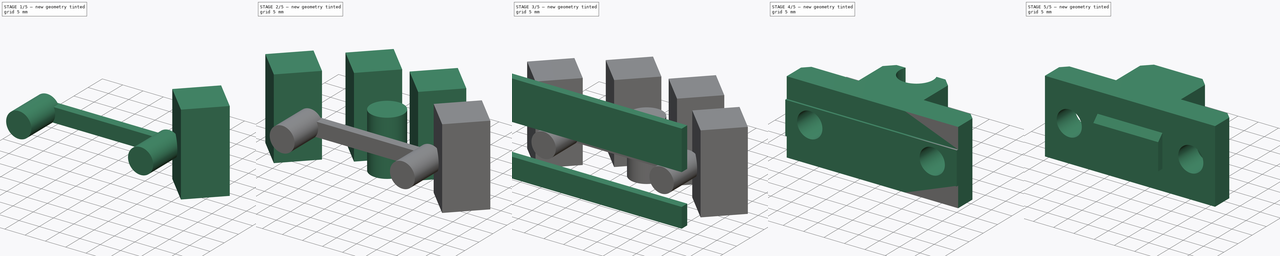
[diagram: build sequence overview — one tinted view per stage of 5, left to right]
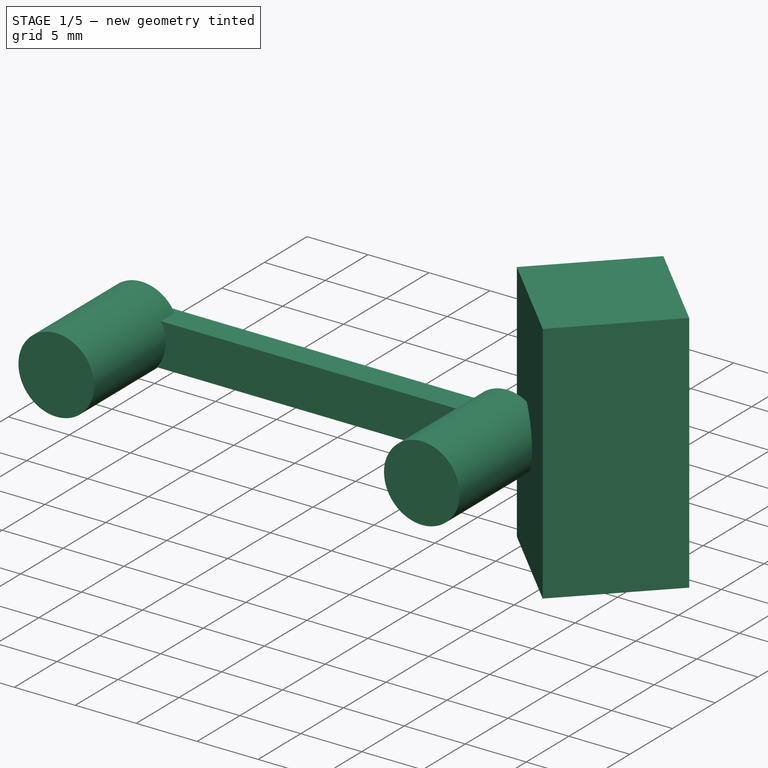
[diagram: stage 1 of 5 — iso view after this stage's code; geometry added in this stage tinted green]
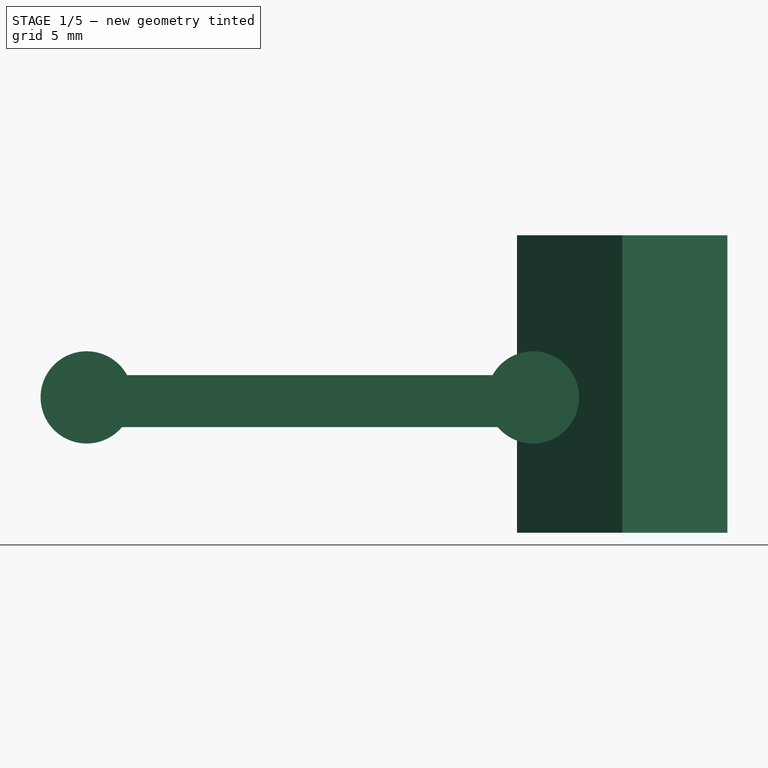
[diagram: stage 1 of 5 — front view after this stage's code; geometry added in this stage tinted green]
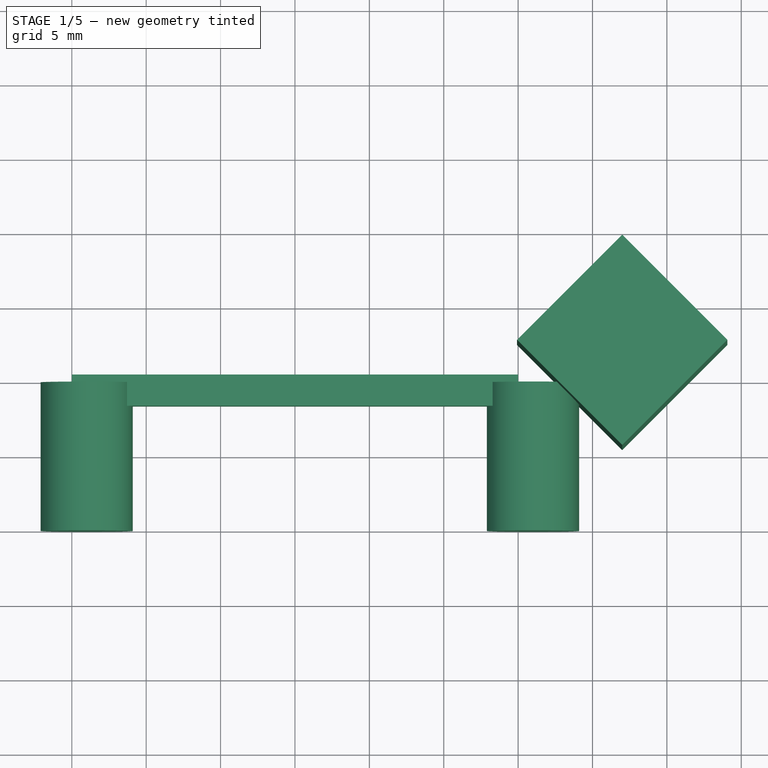
[diagram: stage 1 of 5 — top view after this stage's code; geometry added in this stage tinted green]
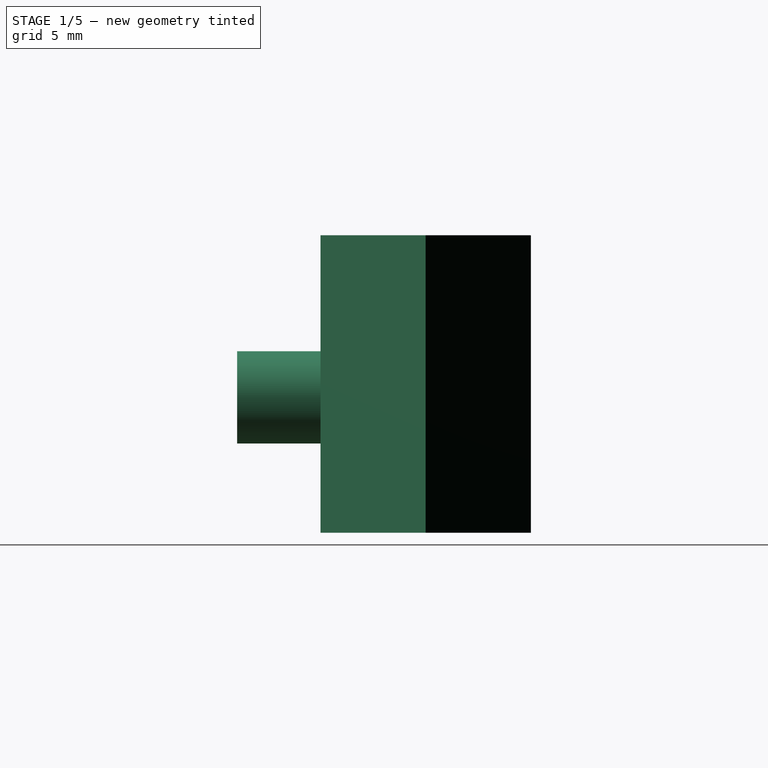
[diagram: stage 1 of 5 — right view after this stage's code; geometry added in this stage tinted green]
FCSTD DOCUMENT  (FreeCAD 0.19R)
Label: y-rod-holder
License: All rights reserved
LicenseURL: http://en.wikipedia.org/wiki/All_rights_reserved
objects: Part::Box×9, Part::Cylinder×3, Sketcher::SketchObject×2, Part::Fuse×1, Part::MultiFuse×1, Part::Cut×1, PartDesign::FeatureBase×1, PartDesign::Pocket×1, PartDesign::Pad×1, PartDesign::Chamfer×1, PartDesign::Body×1
note: 25 computed .brp shape members not serialized (recipe doc carries the construction recipe); baked Part::Feature solids carry a one-line shape summary decoded from their .brp

FEATURE [Part::Box] cube007
  AttacherType = Attacher::AttachEngine3D
  Height = 20
  Length = 10
  Placement = pos=(42,5.5,-0.1) rot=(0,0,1;0.785398rad)
  Width = 10
FEATURE [Part::Cylinder] cylinder001
  Angle = 360
  AttacherType = Attacher::AttachEngine3D
  Height = 10
  Placement = pos=(6,-0.1,9) rot=(-1,0,0;1.5708rad)
  Radius = 3.1
FEATURE [Part::Cylinder] cylinder002
  Angle = 360
  AttacherType = Attacher::AttachEngine3D
  Height = 10
  Placement = pos=(36,-0.1,9) rot=(-1,0,0;1.5708rad)
  Radius = 3.1
FEATURE [Part::Box] cube008
  AttacherType = Attacher::AttachEngine3D
  Height = 3.5
  Length = 30
  Placement = pos=(5,8.3,7) rot=(0,0,1;0rad)
  Width = 2.1
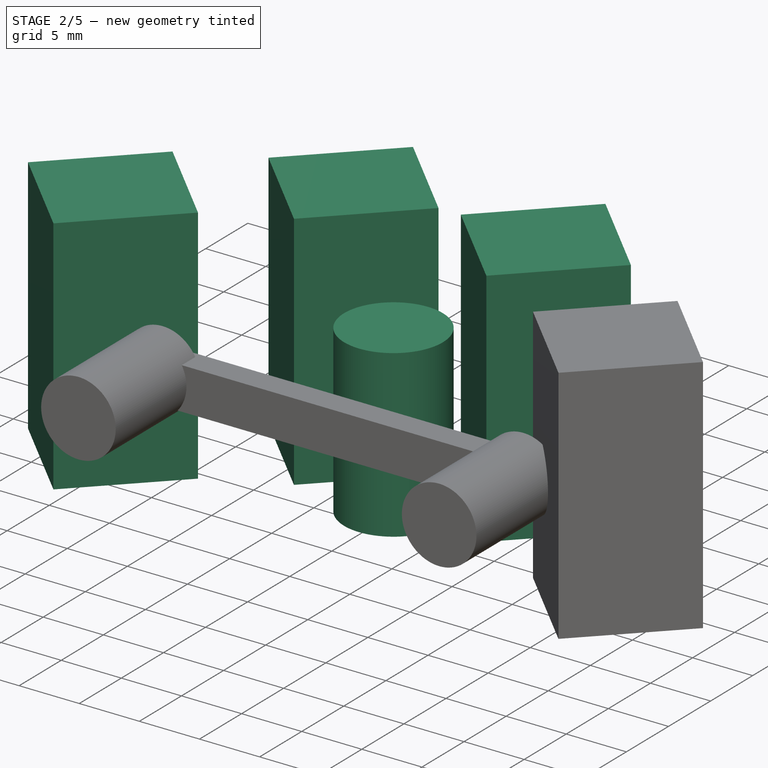
[diagram: stage 2 of 5 — iso view after this stage's code; geometry added in this stage tinted green]
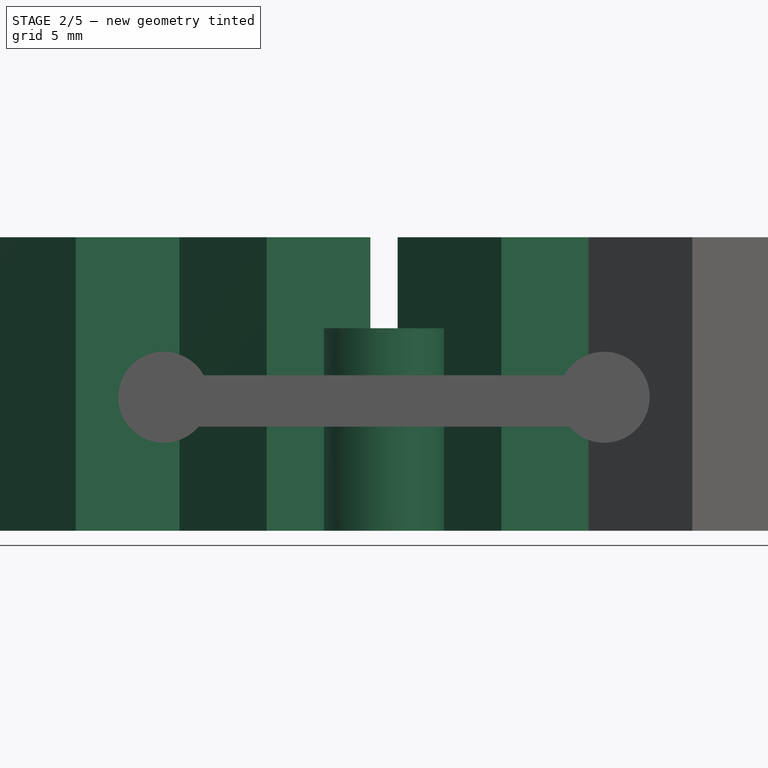
[diagram: stage 2 of 5 — front view after this stage's code; geometry added in this stage tinted green]
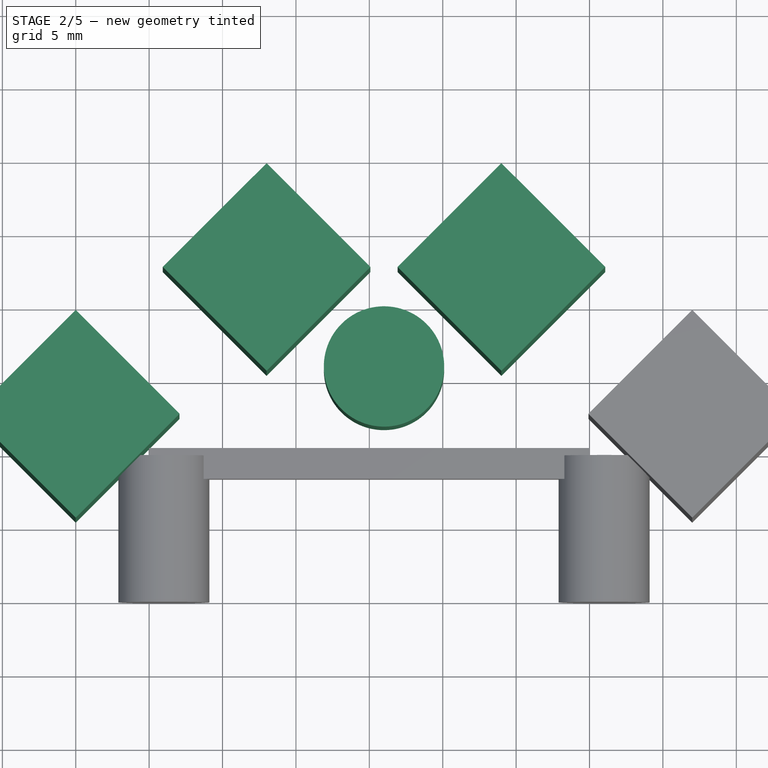
[diagram: stage 2 of 5 — top view after this stage's code; geometry added in this stage tinted green]
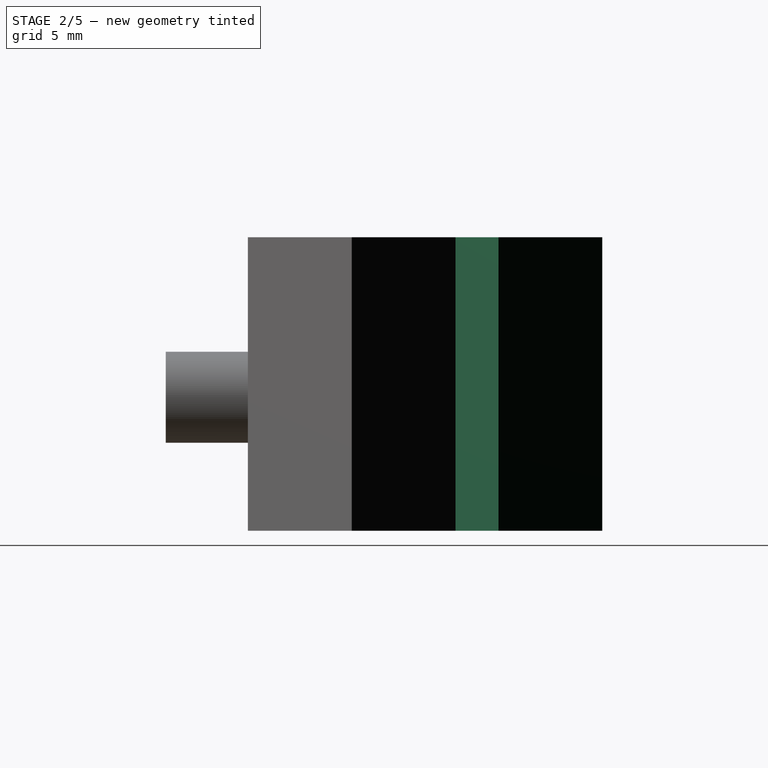
[diagram: stage 2 of 5 — right view after this stage's code; geometry added in this stage tinted green]
FEATURE [Part::Cylinder] cylinder
  Angle = 360
  AttacherType = Attacher::AttachEngine3D
  Height = 13.8
  Placement = pos=(21,15.9,-0.1) rot=(0,0,1;0rad)
  Radius = 4.1
FEATURE [Part::Box] cube004
  AttacherType = Attacher::AttachEngine3D
  Height = 20
  Length = 10
  Placement = pos=(13,15.5,-0.1) rot=(0,0,1;0.785398rad)
  Width = 10
FEATURE [Part::Box] cube005
  AttacherType = Attacher::AttachEngine3D
  Height = 20
  Length = 10
  Placement = pos=(29,15.5,-0.1) rot=(0,0,1;0.785398rad)
  Width = 10
FEATURE [Part::Box] cube006
  AttacherType = Attacher::AttachEngine3D
  Height = 20
  Length = 10
  Placement = pos=(0,5.5,-0.1) rot=(0,0,1;0.785398rad)
  Width = 10
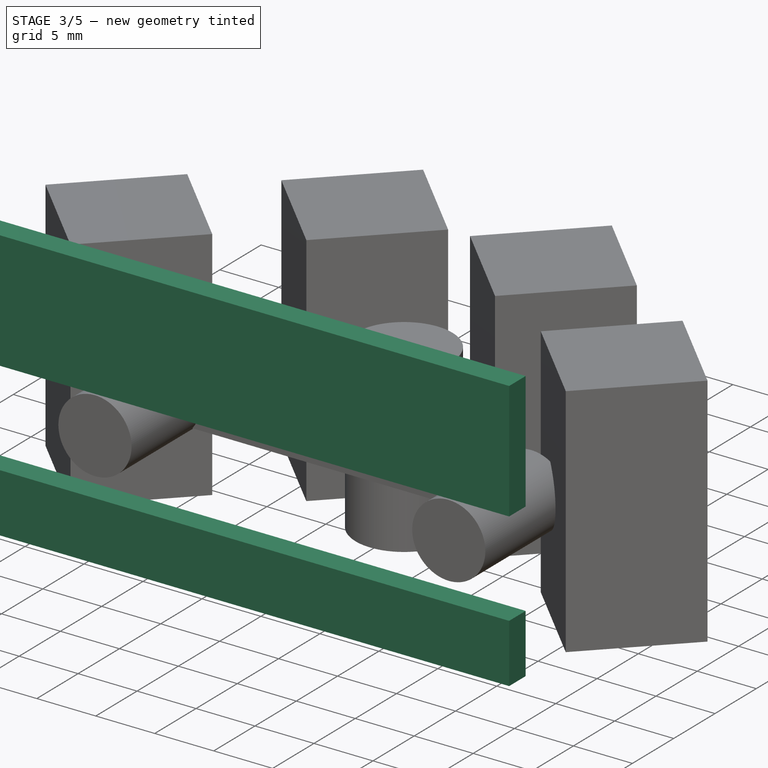
[diagram: stage 3 of 5 — iso view after this stage's code; geometry added in this stage tinted green]
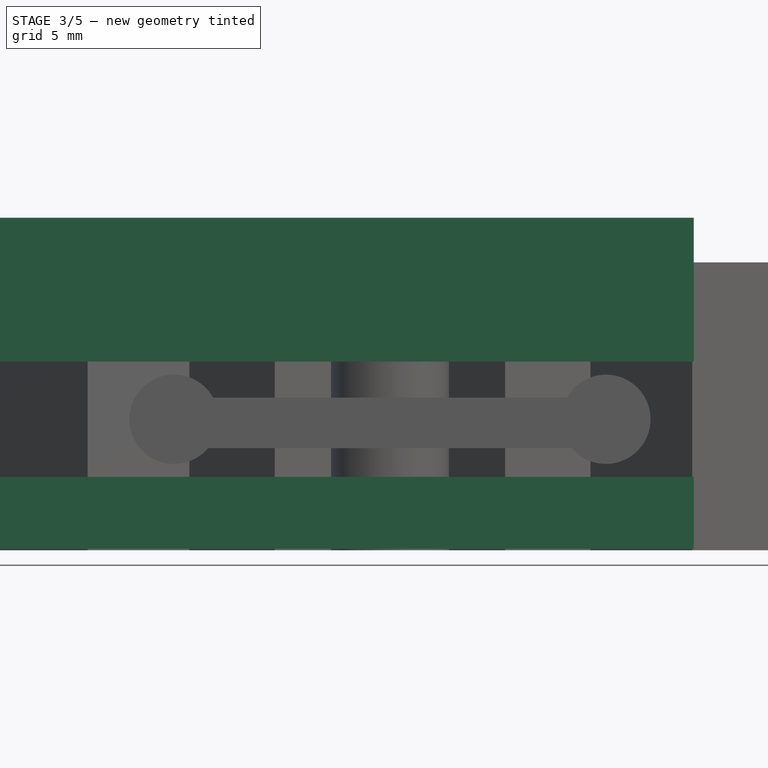
[diagram: stage 3 of 5 — front view after this stage's code; geometry added in this stage tinted green]
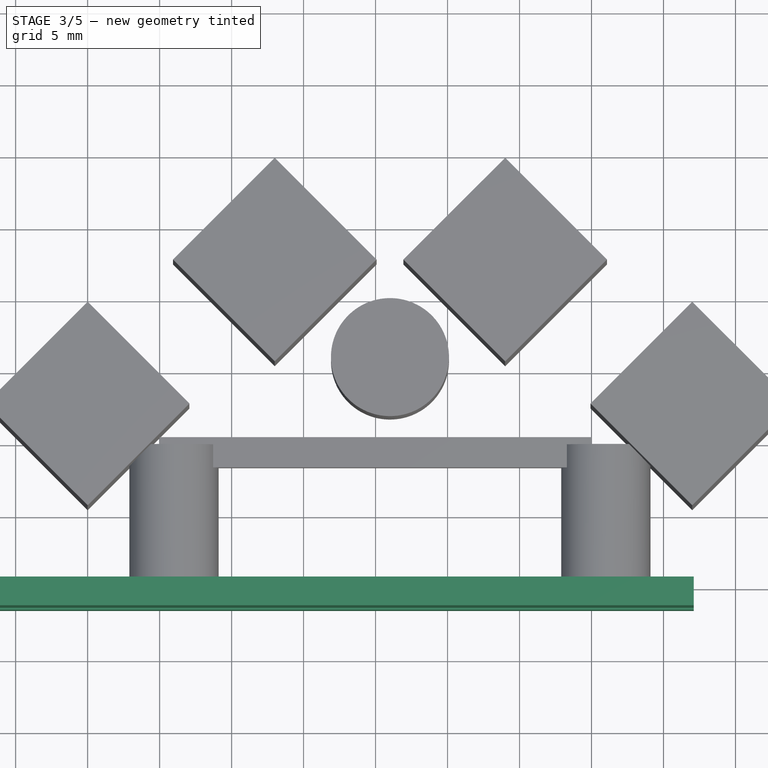
[diagram: stage 3 of 5 — top view after this stage's code; geometry added in this stage tinted green]
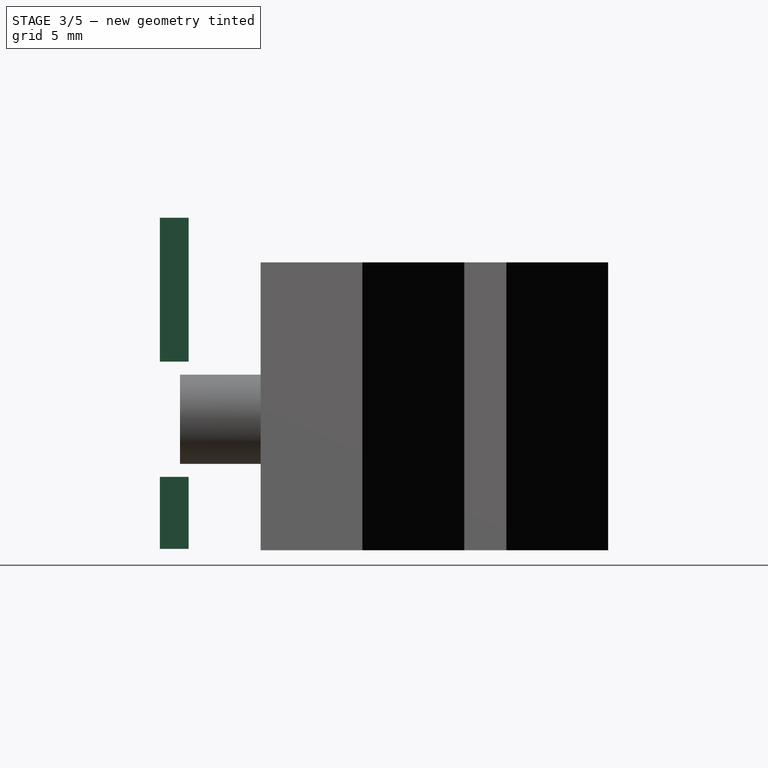
[diagram: stage 3 of 5 — right view after this stage's code; geometry added in this stage tinted green]
FEATURE [Part::Box] cube002
  AttacherType = Attacher::AttachEngine3D
  Height = 10
  Length = 50
  Placement = pos=(42.1,0.5,13) rot=(0,0,1;3.14159rad)
  Width = 2
FEATURE [Part::Box] cube003
  AttacherType = Attacher::AttachEngine3D
  Height = 5
  Length = 50
  Placement = pos=(42.1,0.5,0) rot=(0,0,1;3.14159rad)
  Width = 2
FEATURE [Part::MultiFuse] Group001
  Shapes = -> [cube002,cube003,cylinder,cube004,cube005,cube006,cube007,cylinder001,cylinder002,cube008]
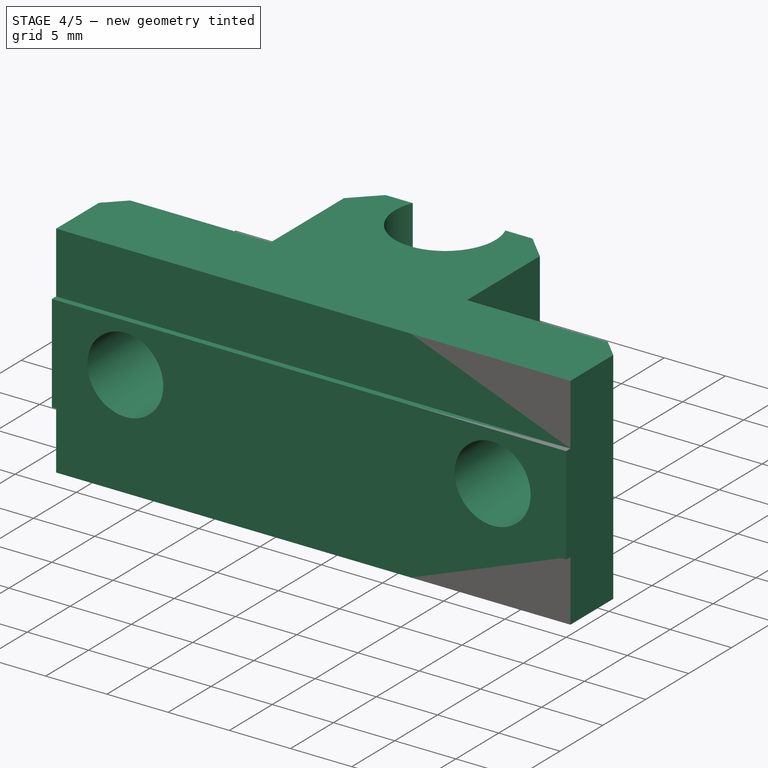
[diagram: stage 4 of 5 — iso view after this stage's code; geometry added in this stage tinted green]
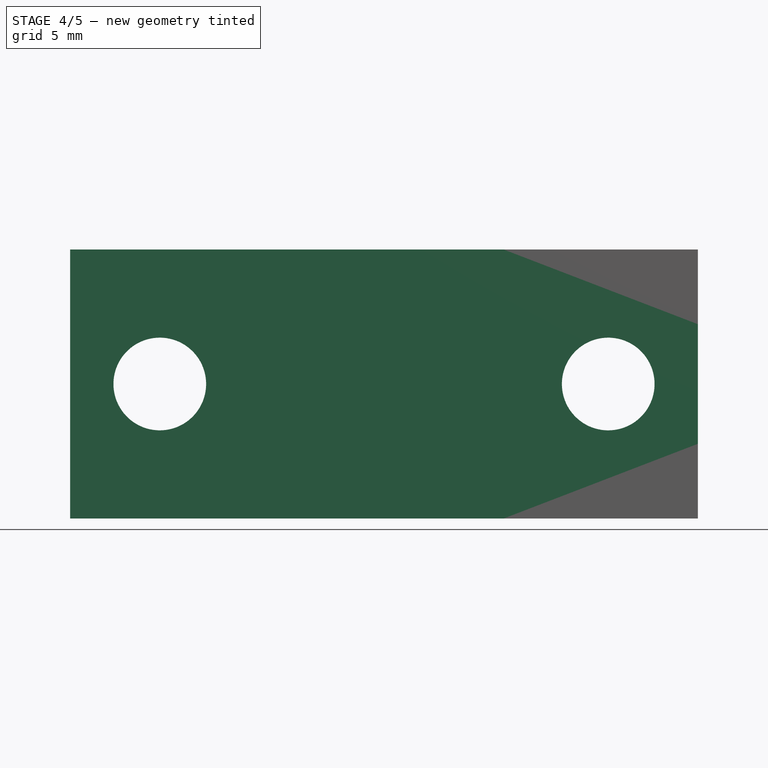
[diagram: stage 4 of 5 — front view after this stage's code; geometry added in this stage tinted green]
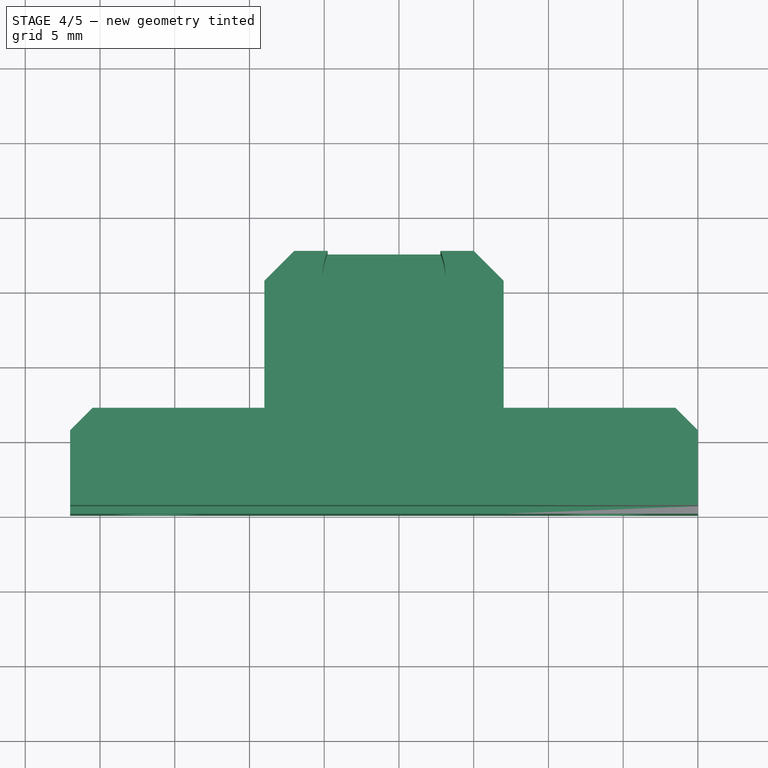
[diagram: stage 4 of 5 — top view after this stage's code; geometry added in this stage tinted green]
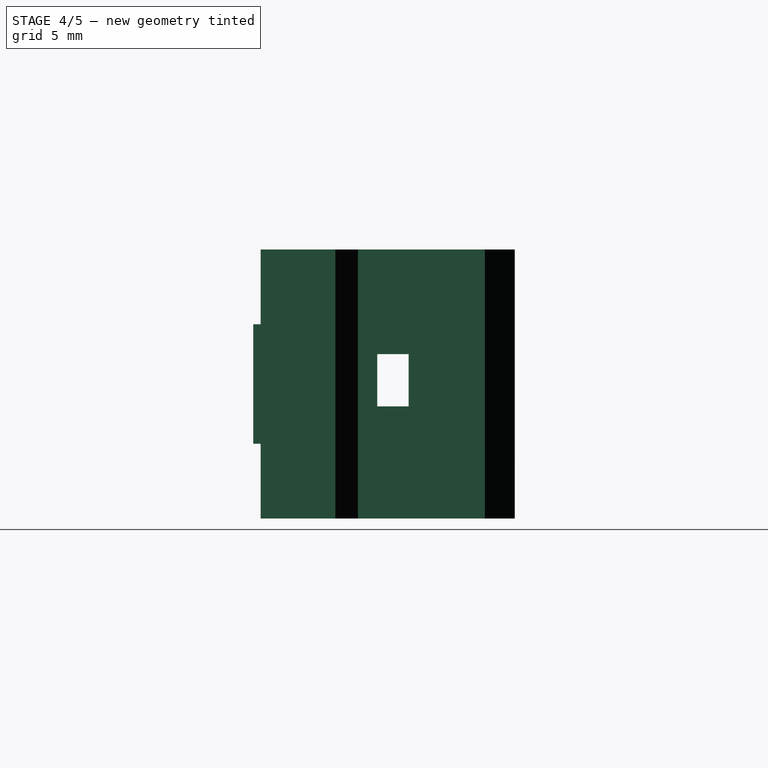
[diagram: stage 4 of 5 — right view after this stage's code; geometry added in this stage tinted green]
FEATURE [Part::Box] cube
  AttacherType = Attacher::AttachEngine3D
  Height = 18
  Length = 42
  Width = 7
FEATURE [Part::Box] cube001
  AttacherType = Attacher::AttachEngine3D
  Height = 18
  Length = 16
  Placement = pos=(13,0,0) rot=(0,0,1;0rad)
  Width = 17.5
FEATURE [Part::Fuse] Group
  Base = -> cube
  Tool = -> cube001
FEATURE [Part::Cut] difference
  Base = -> Group
  Placement = pos=(0,0,18) rot=(0,1,0;3.14159rad)
  Tool = -> Group001
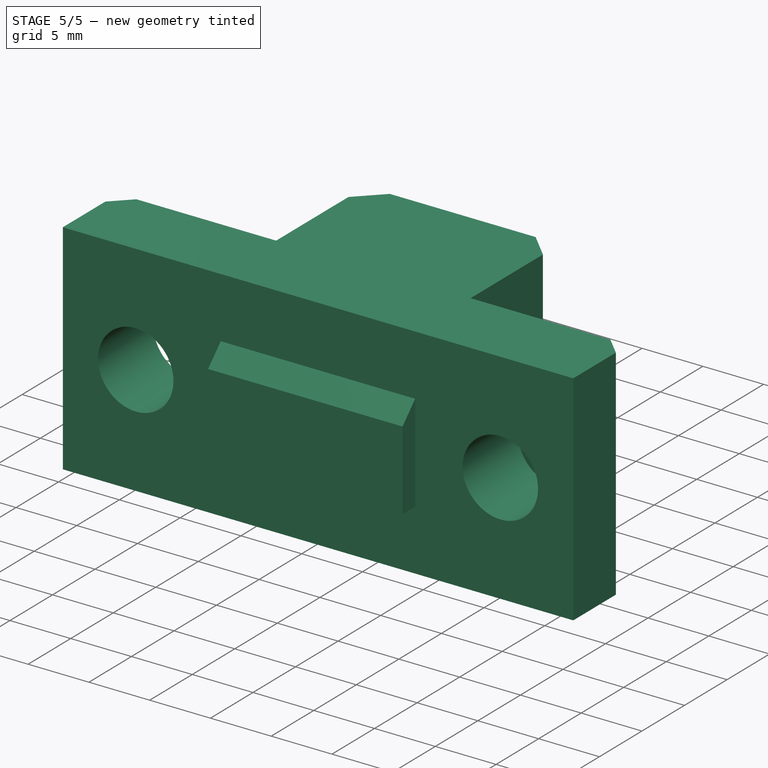
[diagram: stage 5 of 5 — iso view after this stage's code; geometry added in this stage tinted green]
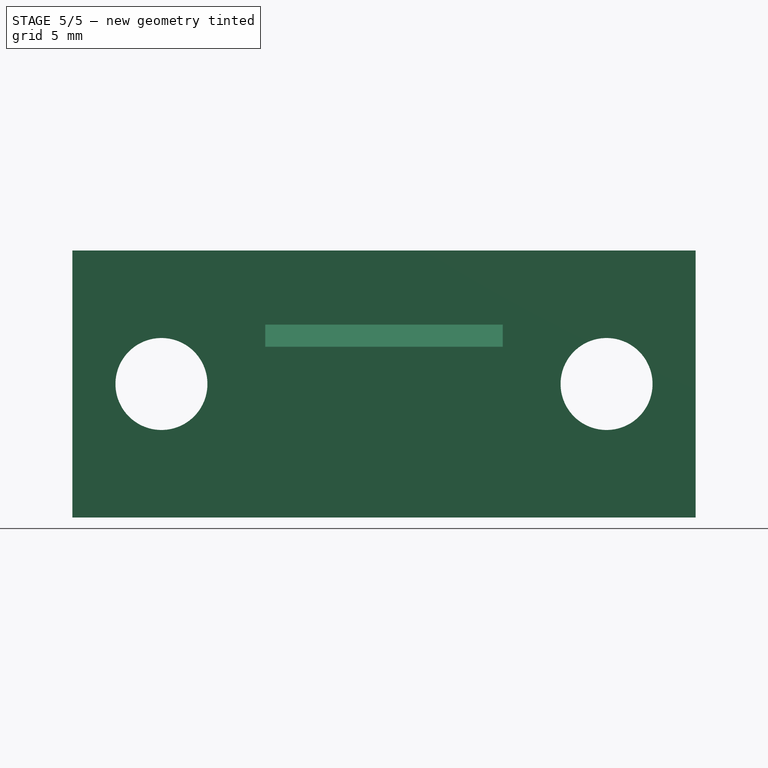
[diagram: stage 5 of 5 — front view after this stage's code; geometry added in this stage tinted green]
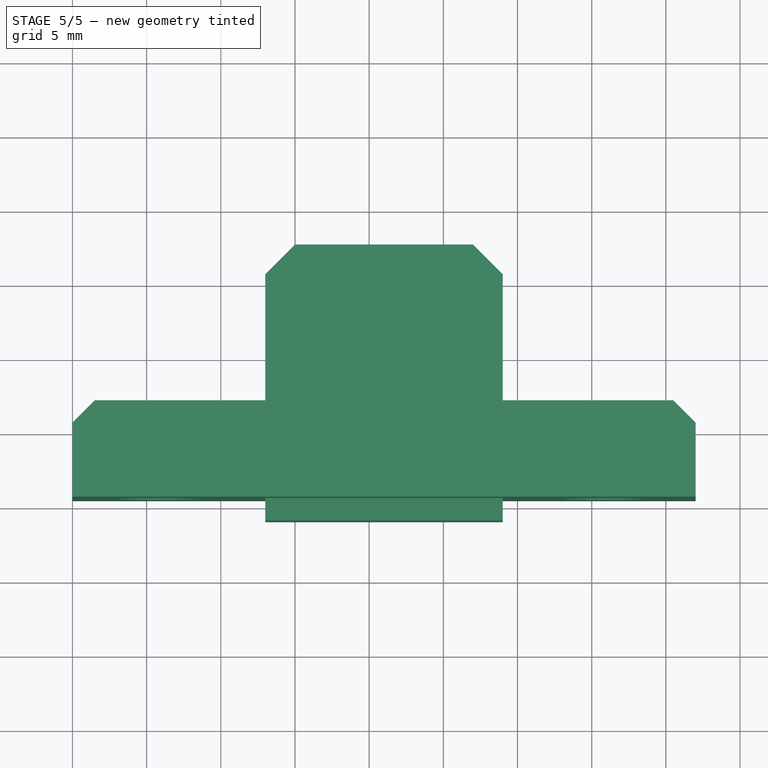
[diagram: stage 5 of 5 — top view after this stage's code; geometry added in this stage tinted green]
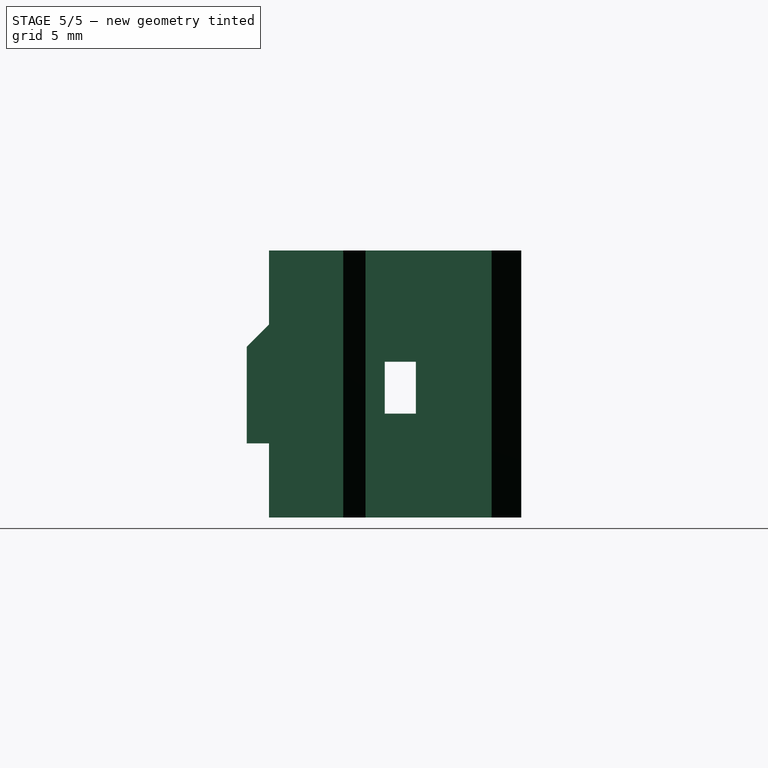
[diagram: stage 5 of 5 — right view after this stage's code; geometry added in this stage tinted green]
FEATURE [PartDesign::FeatureBase] BaseFeature
  BaseFeature = -> difference
FEATURE [Sketcher::SketchObject] Sketch
  ExternalGeometry = -> [BaseFeature]
  MapMode = 5
  Placement = pos=(0,0,0) rot=(1,0,0;1.5708rad)
  Support = -> [BaseFeature]
  sketch-geometry (8):
    g0: LineSegment StartX=0 StartY=13 StartZ=0 EndX=13 EndY=13 EndZ=0
    g1: LineSegment StartX=13 StartY=13 StartZ=0 EndX=13 EndY=5 EndZ=0
    g2: LineSegment StartX=13 StartY=5 StartZ=0 EndX=0 EndY=5 EndZ=0
    g3: LineSegment StartX=0 StartY=5 StartZ=0 EndX=0 EndY=13 EndZ=0
    g4: LineSegment StartX=29 StartY=13 StartZ=0 EndX=42 EndY=13 EndZ=0
    g5: LineSegment StartX=42 StartY=13 StartZ=0 EndX=42 EndY=5 EndZ=0
    g6: LineSegment StartX=42 StartY=5 StartZ=0 EndX=29 EndY=5 EndZ=0
    g7: LineSegment StartX=29 StartY=5 StartZ=0 EndX=29 EndY=13 EndZ=0
  constraints (20):
    c: Coincident(g0,g1)
    c: Coincident(g1,g2)
    c: Coincident(g2,g3)
    c: Coincident(g3,g0)
    c: Horizontal(g0)
    c: Horizontal(g2)
    c: Vertical(g1)
    c: Vertical(g3)
    c: Coincident(g0,g-3)
    c: Coincident(g1,g-6)
    c: Coincident(g4,g5)
    c: Coincident(g5,g6)
    c: Coincident(g6,g7)
    c: Coincident(g7,g4)
    c: Horizontal(g4)
    c: Horizontal(g6)
    c: Vertical(g5)
    c: Vertical(g7)
    c: Coincident(g4,g-4)
    c: Coincident(g5,g-5)
FEATURE [PartDesign::Pocket] Pocket
  BaseFeature = -> BaseFeature
  Length = 0.5
  Length2 = 100
  Profile = -> Sketch
  Type = 0
FEATURE [Sketcher::SketchObject] Sketch001
  ExternalGeometry = -> [Pocket]
  MapMode = 5
  Placement = pos=(0,0,0) rot=(1,0,0;1.5708rad)
  Support = -> [Pocket]
  sketch-geometry (4):
    g0: LineSegment StartX=13 StartY=13 StartZ=0 EndX=29 EndY=13 EndZ=0
    g1: LineSegment StartX=29 StartY=13 StartZ=0 EndX=29 EndY=5 EndZ=0
    g2: LineSegment StartX=29 StartY=5 StartZ=0 EndX=13 EndY=5 EndZ=0
    g3: LineSegment StartX=13 StartY=5 StartZ=0 EndX=13 EndY=13 EndZ=0
  constraints (10):
    c: Coincident(g0,g1)
    c: Coincident(g1,g2)
    c: Coincident(g2,g3)
    c: Coincident(g3,g0)
    c: Horizontal(g0)
    c: Horizontal(g2)
    c: Vertical(g1)
    c: Vertical(g3)
    c: Coincident(g0,g-3)
    c: Coincident(g1,g-4)
FEATURE [PartDesign::Pad] Pad
  BaseFeature = -> Pocket
  Length = 1
  Length2 = 100
  Profile = -> Sketch001
  Refine = true
  Type = 0
FEATURE [PartDesign::Chamfer] Chamfer
  Angle = 45
  Base = -> Pad [Edge70]
  BaseFeature = -> Pad
  ChamferType = 0
  FlipDirection = false
  Size = 1.49
  Size2 = 1
  SupportTransform = false
FEATURE [PartDesign::Body] Body
  BaseFeature = -> difference
  Group = -> [BaseFeature,Sketch,Pocket,Sketch001,Pad,Chamfer]
  Origin = -> Origin
  Tip = -> Chamfer
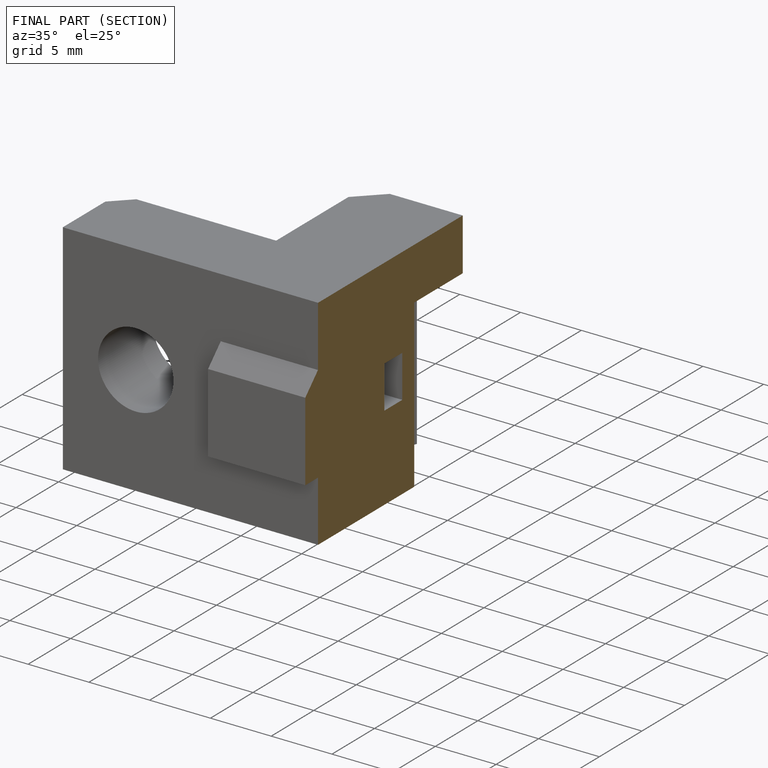
[diagram: finished part — half-section view (interior)]
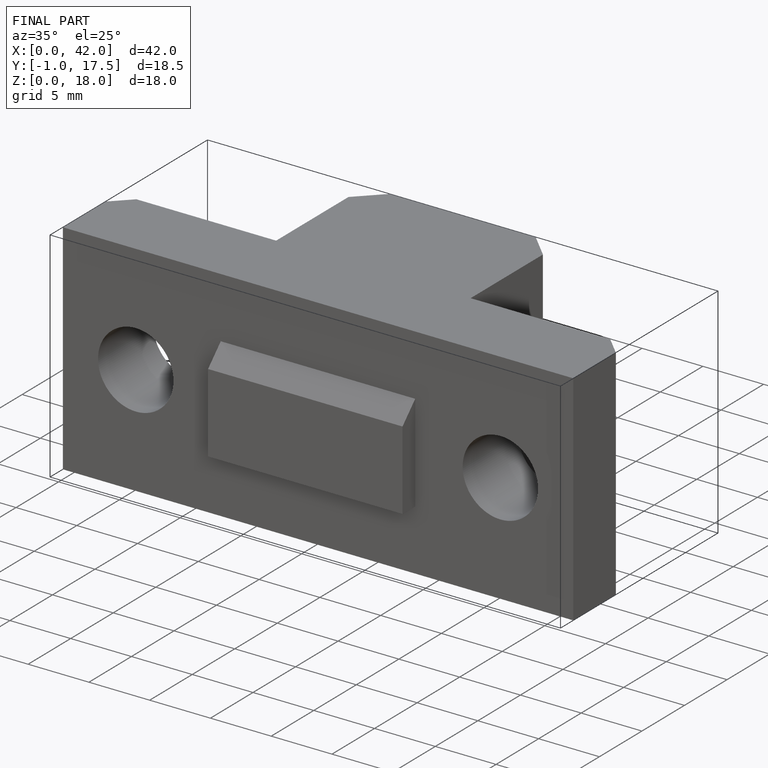
[diagram: finished part — iso view with bounding-box wireframe]
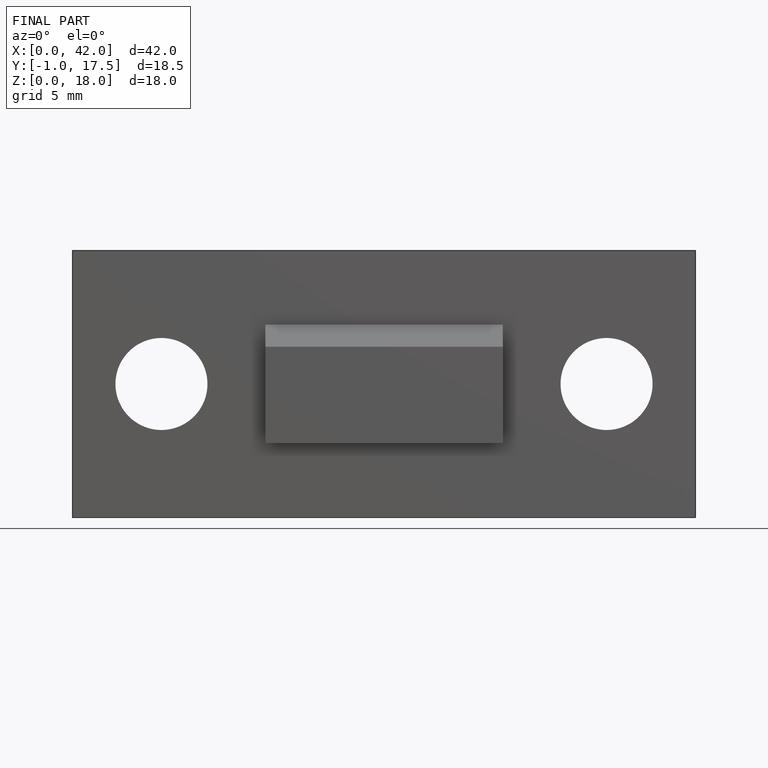
[diagram: finished part — front view with bounding-box wireframe]
